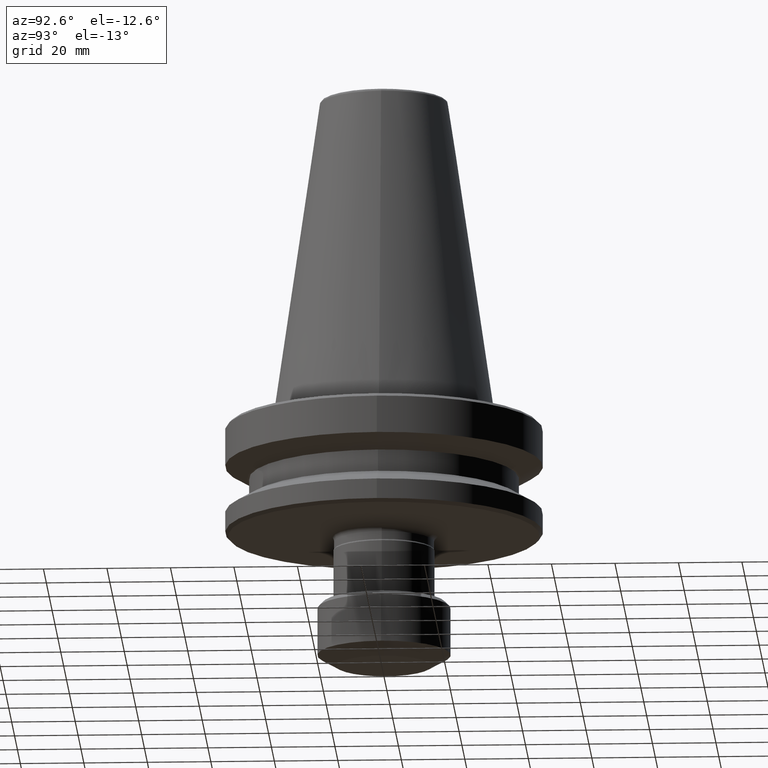
[diagram: clean part render]
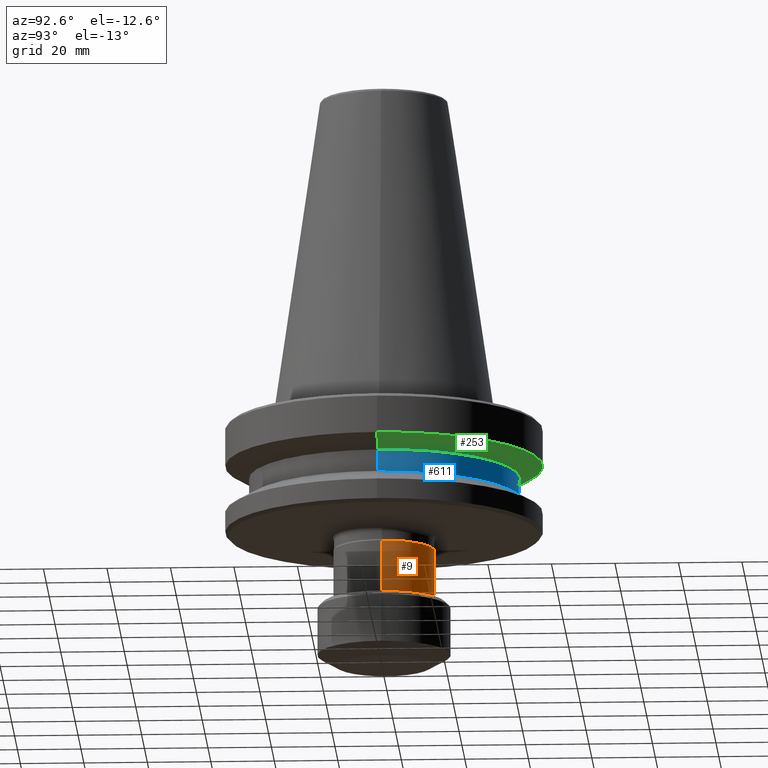
[diagram: same view with three faces highlighted in distinct colors, each labeled with its STEP entity id]
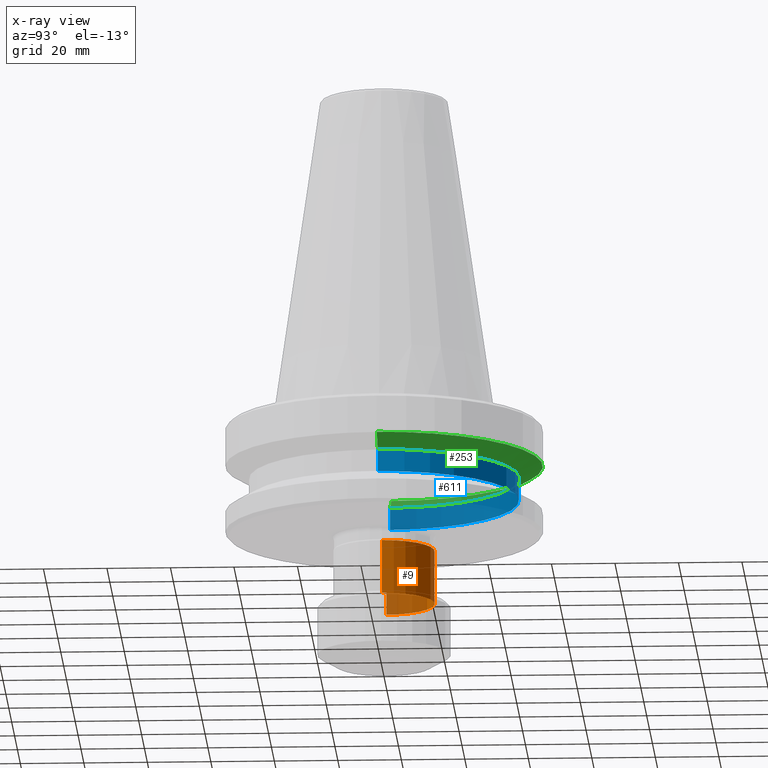
[diagram: x-ray of the same camera — body ghosted, the three highlighted faces saturated]
A machine part, auxiliary view with three faces highlighted in distinct colors.
The next image is the same camera in x-ray (body ghosted, the three faces saturated) — at least one of them is partly hidden behind the body in this view.
Their STEP definitions:

[orange] entity #9 — the highlighted cylindrical surface (partial cylindrical patch) has radius 15.95 mm, axis along (-0, -0, 1).
#9 = ADVANCED_FACE ( 'NONE', ( #405 ), #165, .T. ) ;
#24 = VERTEX_POINT ( 'NONE', #990 ) ;
#31 = CARTESIAN_POINT ( 'NONE',  ( 0.0000000000000000000, 0.0000000000000000000, -59.99625950816082600 ) ) ;
#35 = VERTEX_POINT ( 'NONE', #383 ) ;
#128 = EDGE_CURVE ( 'NONE', #991, #1105, #678, .T. ) ;
#165 = CYLINDRICAL_SURFACE ( 'NONE', #1038, 15.95000000000368300 ) ;
#192 = EDGE_CURVE ( 'NONE', #991, #35, #625, .T. ) ;
#193 = VECTOR ( 'NONE', #771, 1000.000000000000000 ) ;
#342 = CARTESIAN_POINT ( 'NONE',  ( 0.0000000000000000000, 0.0000000000000000000, 117.0068572025811700 ) ) ;
#344 = CARTESIAN_POINT ( 'NONE',  ( -15.95000000000368300, 1.953311644640479700E-015, -43.00000000000016300 ) ) ;
#383 = CARTESIAN_POINT ( 'NONE',  ( 15.95000000000368300, 0.0000000000000000000, -59.99625950816082600 ) ) ;
#403 = AXIS2_PLACEMENT_3D ( 'NONE', #1058, #489, #1147 ) ;
#405 = FACE_OUTER_BOUND ( 'NONE', #1167, .T. ) ;
#409 = VECTOR ( 'NONE', #1151, 1000.000000000000000 ) ;
#415 = CARTESIAN_POINT ( 'NONE',  ( -15.95000000000368300, 1.953311644640479700E-015, -59.99625950816082600 ) ) ;
#489 = DIRECTION ( 'NONE',  ( -0.0000000000000000000, -0.0000000000000000000, 1.000000000000000000 ) ) ;
#512 = AXIS2_PLACEMENT_3D ( 'NONE', #31, #1102, #868 ) ;
#564 = ORIENTED_EDGE ( 'NONE', *, *, #646, .F. ) ;
#616 = ORIENTED_EDGE ( 'NONE', *, *, #128, .T. ) ;
#625 = CIRCLE ( 'NONE', #512, 15.95000000000368300 ) ;
#646 = EDGE_CURVE ( 'NONE', #24, #1105, #816, .T. ) ;
#678 = LINE ( 'NONE', #883, #409 ) ;
#701 = LINE ( 'NONE', #1134, #193 ) ;
#771 = DIRECTION ( 'NONE',  ( -0.0000000000000000000, -0.0000000000000000000, 1.000000000000000000 ) ) ;
#787 = EDGE_CURVE ( 'NONE', #35, #24, #701, .T. ) ;
#794 = DIRECTION ( 'NONE',  ( 1.000000000000000000, 0.0000000000000000000, 0.0000000000000000000 ) ) ;
#816 = CIRCLE ( 'NONE', #403, 15.95000000000368300 ) ;
#868 = DIRECTION ( 'NONE',  ( -1.000000000000000000, 0.0000000000000000000, 0.0000000000000000000 ) ) ;
#869 = DIRECTION ( 'NONE',  ( -0.0000000000000000000, -0.0000000000000000000, 1.000000000000000000 ) ) ;
#883 = CARTESIAN_POINT ( 'NONE',  ( -15.95000000000368300, 1.953311644640479700E-015, 117.0068572025811700 ) ) ;
#920 = ORIENTED_EDGE ( 'NONE', *, *, #192, .F. ) ;
#990 = CARTESIAN_POINT ( 'NONE',  ( 15.95000000000368300, 0.0000000000000000000, -43.00000000000016300 ) ) ;
#991 = VERTEX_POINT ( 'NONE', #415 ) ;
#1038 = AXIS2_PLACEMENT_3D ( 'NONE', #342, #869, #794 ) ;
#1058 = CARTESIAN_POINT ( 'NONE',  ( 0.0000000000000000000, 0.0000000000000000000, -43.00000000000016300 ) ) ;
#1102 = DIRECTION ( 'NONE',  ( 0.0000000000000000000, 0.0000000000000000000, -1.000000000000000000 ) ) ;
#1105 = VERTEX_POINT ( 'NONE', #344 ) ;
#1134 = CARTESIAN_POINT ( 'NONE',  ( 15.95000000000368300, 0.0000000000000000000, 117.0068572025811700 ) ) ;
#1147 = DIRECTION ( 'NONE',  ( 1.000000000000000000, 0.0000000000000000000, 0.0000000000000000000 ) ) ;
#1151 = DIRECTION ( 'NONE',  ( -0.0000000000000000000, -0.0000000000000000000, 1.000000000000000000 ) ) ;
#1167 = EDGE_LOOP ( 'NONE', ( #920, #616, #564, #1172 ) ) ;
#1172 = ORIENTED_EDGE ( 'NONE', *, *, #787, .F. ) ;

[blue] entity #611 — the highlighted cylindrical surface (partial cylindrical patch) has radius 42.5 mm, axis along (-0, -0, 1).
#6 = DIRECTION ( 'NONE',  ( -0.0000000000000000000, -0.0000000000000000000, 1.000000000000000000 ) ) ;
#18 = VERTEX_POINT ( 'NONE', #1056 ) ;
#79 = CIRCLE ( 'NONE', #1003, 42.49999999999987200 ) ;
#97 = VERTEX_POINT ( 'NONE', #127 ) ;
#98 = CARTESIAN_POINT ( 'NONE',  ( 0.0000000000000000000, 0.0000000000000000000, 117.0068572025811700 ) ) ;
#109 = CARTESIAN_POINT ( 'NONE',  ( -42.49999999999987200, 5.204748896376235100E-015, 117.0068572025811700 ) ) ;
#111 = CARTESIAN_POINT ( 'NONE',  ( -42.49999999999987200, 5.204748896376235100E-015, -26.69999999999968300 ) ) ;
#112 = ORIENTED_EDGE ( 'NONE', *, *, #895, .T. ) ;
#127 = CARTESIAN_POINT ( 'NONE',  ( 42.49999999999987200, 0.0000000000000000000, -19.69999999999945600 ) ) ;
#173 = CARTESIAN_POINT ( 'NONE',  ( -42.49999999999987200, 5.204748896376235100E-015, -19.69999999999945600 ) ) ;
#196 = DIRECTION ( 'NONE',  ( 1.000000000000000000, 0.0000000000000000000, 0.0000000000000000000 ) ) ;
#308 = VECTOR ( 'NONE', #774, 1000.000000000000000 ) ;
#376 = ORIENTED_EDGE ( 'NONE', *, *, #606, .F. ) ;
#399 = DIRECTION ( 'NONE',  ( -0.0000000000000000000, -0.0000000000000000000, 1.000000000000000000 ) ) ;
#460 = DIRECTION ( 'NONE',  ( -0.0000000000000000000, -0.0000000000000000000, 1.000000000000000000 ) ) ;
#530 = VERTEX_POINT ( 'NONE', #173 ) ;
#559 = LINE ( 'NONE', #1136, #308 ) ;
#575 = CARTESIAN_POINT ( 'NONE',  ( 0.0000000000000000000, 0.0000000000000000000, -26.69999999999968300 ) ) ;
#578 = VECTOR ( 'NONE', #399, 1000.000000000000000 ) ;
#581 = AXIS2_PLACEMENT_3D ( 'NONE', #1033, #460, #1121 ) ;
#601 = EDGE_CURVE ( 'NONE', #18, #919, #79, .T. ) ;
#606 = EDGE_CURVE ( 'NONE', #18, #97, #559, .T. ) ;
#611 = ADVANCED_FACE ( 'NONE', ( #1062 ), #788, .T. ) ;
#670 = DIRECTION ( 'NONE',  ( 1.000000000000000000, 0.0000000000000000000, 0.0000000000000000000 ) ) ;
#718 = EDGE_CURVE ( 'NONE', #97, #530, #1037, .T. ) ;
#721 = ORIENTED_EDGE ( 'NONE', *, *, #718, .F. ) ;
#743 = EDGE_LOOP ( 'NONE', ( #1097, #112, #721, #376 ) ) ;
#774 = DIRECTION ( 'NONE',  ( -0.0000000000000000000, -0.0000000000000000000, 1.000000000000000000 ) ) ;
#788 = CYLINDRICAL_SURFACE ( 'NONE', #1174, 42.49999999999987200 ) ;
#862 = DIRECTION ( 'NONE',  ( -0.0000000000000000000, -0.0000000000000000000, 1.000000000000000000 ) ) ;
#895 = EDGE_CURVE ( 'NONE', #919, #530, #1080, .T. ) ;
#919 = VERTEX_POINT ( 'NONE', #111 ) ;
#1003 = AXIS2_PLACEMENT_3D ( 'NONE', #575, #6, #670 ) ;
#1033 = CARTESIAN_POINT ( 'NONE',  ( 0.0000000000000000000, 0.0000000000000000000, -19.69999999999945600 ) ) ;
#1037 = CIRCLE ( 'NONE', #581, 42.49999999999987200 ) ;
#1056 = CARTESIAN_POINT ( 'NONE',  ( 42.49999999999987200, 0.0000000000000000000, -26.69999999999968300 ) ) ;
#1062 = FACE_OUTER_BOUND ( 'NONE', #743, .T. ) ;
#1080 = LINE ( 'NONE', #109, #578 ) ;
#1097 = ORIENTED_EDGE ( 'NONE', *, *, #601, .T. ) ;
#1121 = DIRECTION ( 'NONE',  ( 1.000000000000000000, 0.0000000000000000000, 0.0000000000000000000 ) ) ;
#1136 = CARTESIAN_POINT ( 'NONE',  ( 42.49999999999987200, 0.0000000000000000000, 117.0068572025811700 ) ) ;
#1174 = AXIS2_PLACEMENT_3D ( 'NONE', #98, #862, #196 ) ;

[green] entity #253 — the highlighted conical surface has half-angle 60 deg.
#15 = DIRECTION ( 'NONE',  ( 0.8660254037844388200, 0.0000000000000000000, 0.4999999999999997200 ) ) ;
#40 = EDGE_CURVE ( 'NONE', #84, #916, #427, .T. ) ;
#52 = CARTESIAN_POINT ( 'NONE',  ( 0.0000000000000000000, 0.0000000000000000000, -19.69999999999945600 ) ) ;
#84 = VERTEX_POINT ( 'NONE', #821 ) ;
#155 = EDGE_LOOP ( 'NONE', ( #338, #1191, #436, #364 ) ) ;
#188 = EDGE_CURVE ( 'NONE', #775, #288, #568, .T. ) ;
#198 = DIRECTION ( 'NONE',  ( -0.0000000000000000000, -0.0000000000000000000, 1.000000000000000000 ) ) ;
#206 = DIRECTION ( 'NONE',  ( 1.000000000000000000, 0.0000000000000000000, 0.0000000000000000000 ) ) ;
#208 = AXIS2_PLACEMENT_3D ( 'NONE', #52, #502, #494 ) ;
#253 = ADVANCED_FACE ( 'NONE', ( #259 ), #630, .T. ) ;
#259 = FACE_OUTER_BOUND ( 'NONE', #155, .T. ) ;
#288 = VERTEX_POINT ( 'NONE', #321 ) ;
#309 = CARTESIAN_POINT ( 'NONE',  ( -43.07217782649197300, 5.699027233244349400E-015, -19.69999999999945600 ) ) ;
#321 = CARTESIAN_POINT ( 'NONE',  ( -50.00000000000027000, 6.123233995736799200E-015, -15.70022000322658700 ) ) ;
#329 = CARTESIAN_POINT ( 'NONE',  ( 0.0000000000000000000, 0.0000000000000000000, -15.70022000322658700 ) ) ;
#338 = ORIENTED_EDGE ( 'NONE', *, *, #40, .T. ) ;
#345 = CARTESIAN_POINT ( 'NONE',  ( 0.0000000000000000000, 0.0000000000000000000, -19.69999999999945600 ) ) ;
#364 = ORIENTED_EDGE ( 'NONE', *, *, #640, .F. ) ;
#427 = CIRCLE ( 'NONE', #208, 43.07217782649197300 ) ;
#436 = ORIENTED_EDGE ( 'NONE', *, *, #188, .F. ) ;
#448 = AXIS2_PLACEMENT_3D ( 'NONE', #345, #626, #859 ) ;
#494 = DIRECTION ( 'NONE',  ( 1.000000000000000000, 0.0000000000000000000, 0.0000000000000000000 ) ) ;
#502 = DIRECTION ( 'NONE',  ( -0.0000000000000000000, -0.0000000000000000000, 1.000000000000000000 ) ) ;
#568 = CIRCLE ( 'NONE', #962, 50.00000000000027000 ) ;
#626 = DIRECTION ( 'NONE',  ( -0.0000000000000000000, -0.0000000000000000000, 1.000000000000000000 ) ) ;
#630 = CONICAL_SURFACE ( 'NONE', #448, 43.07217782649197300, 1.047197551196598100 ) ;
#640 = EDGE_CURVE ( 'NONE', #84, #775, #1031, .T. ) ;
#662 = CARTESIAN_POINT ( 'NONE',  ( 50.00000000000027000, 0.0000000000000000000, -15.70022000322658700 ) ) ;
#674 = CARTESIAN_POINT ( 'NONE',  ( 43.07217782649197300, 0.0000000000000000000, -19.69999999999945600 ) ) ;
#729 = EDGE_CURVE ( 'NONE', #916, #288, #732, .T. ) ;
#732 = LINE ( 'NONE', #1125, #948 ) ;
#775 = VERTEX_POINT ( 'NONE', #662 ) ;
#821 = CARTESIAN_POINT ( 'NONE',  ( 43.07217782649197300, 0.0000000000000000000, -19.69999999999945600 ) ) ;
#859 = DIRECTION ( 'NONE',  ( 1.000000000000000000, 0.0000000000000000000, 0.0000000000000000000 ) ) ;
#870 = VECTOR ( 'NONE', #15, 1000.000000000000000 ) ;
#916 = VERTEX_POINT ( 'NONE', #309 ) ;
#940 = DIRECTION ( 'NONE',  ( -0.8660254037844388200, 1.060575238724907200E-016, 0.4999999999999997200 ) ) ;
#948 = VECTOR ( 'NONE', #940, 1000.000000000000000 ) ;
#962 = AXIS2_PLACEMENT_3D ( 'NONE', #329, #198, #206 ) ;
#1031 = LINE ( 'NONE', #674, #870 ) ;
#1125 = CARTESIAN_POINT ( 'NONE',  ( -43.07217782649197300, 5.274820470751900300E-015, -19.69999999999945600 ) ) ;
#1191 = ORIENTED_EDGE ( 'NONE', *, *, #729, .T. ) ;